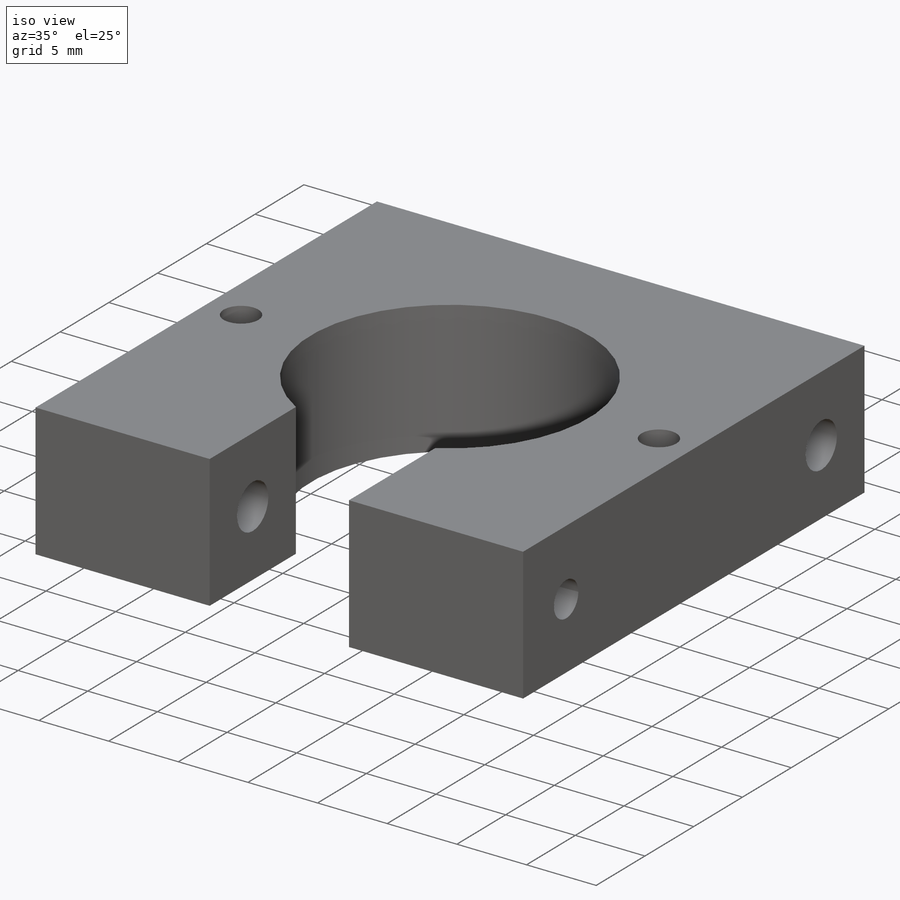
[diagram: iso view]
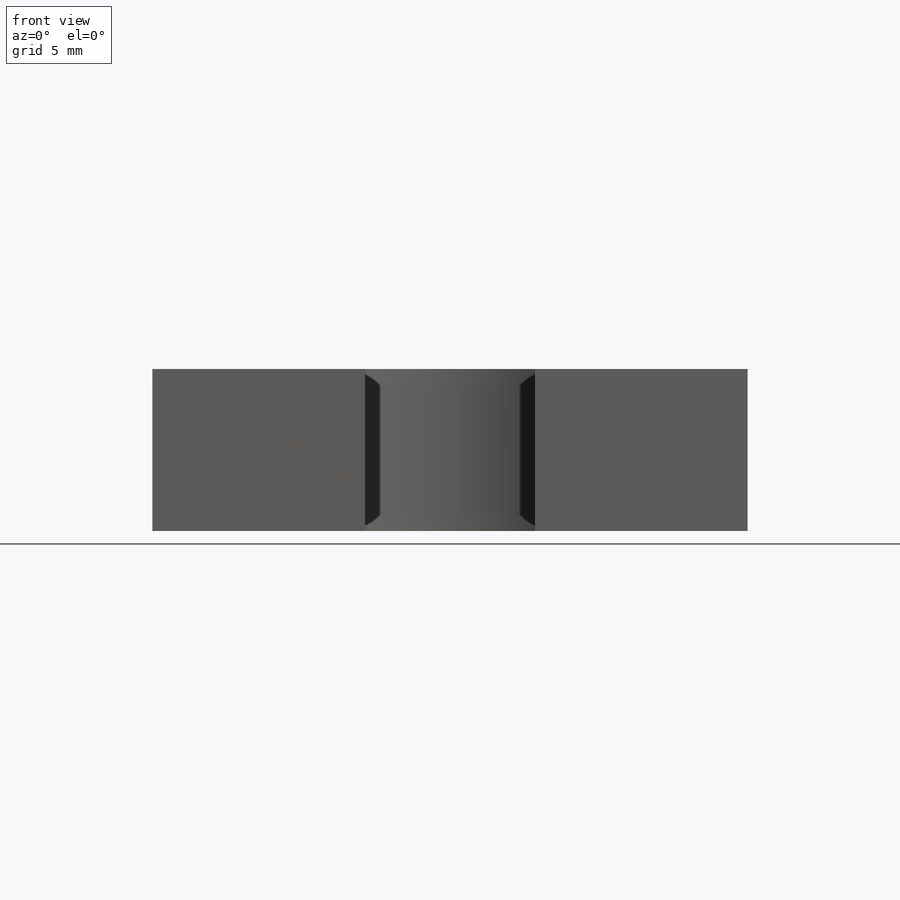
[diagram: front view]
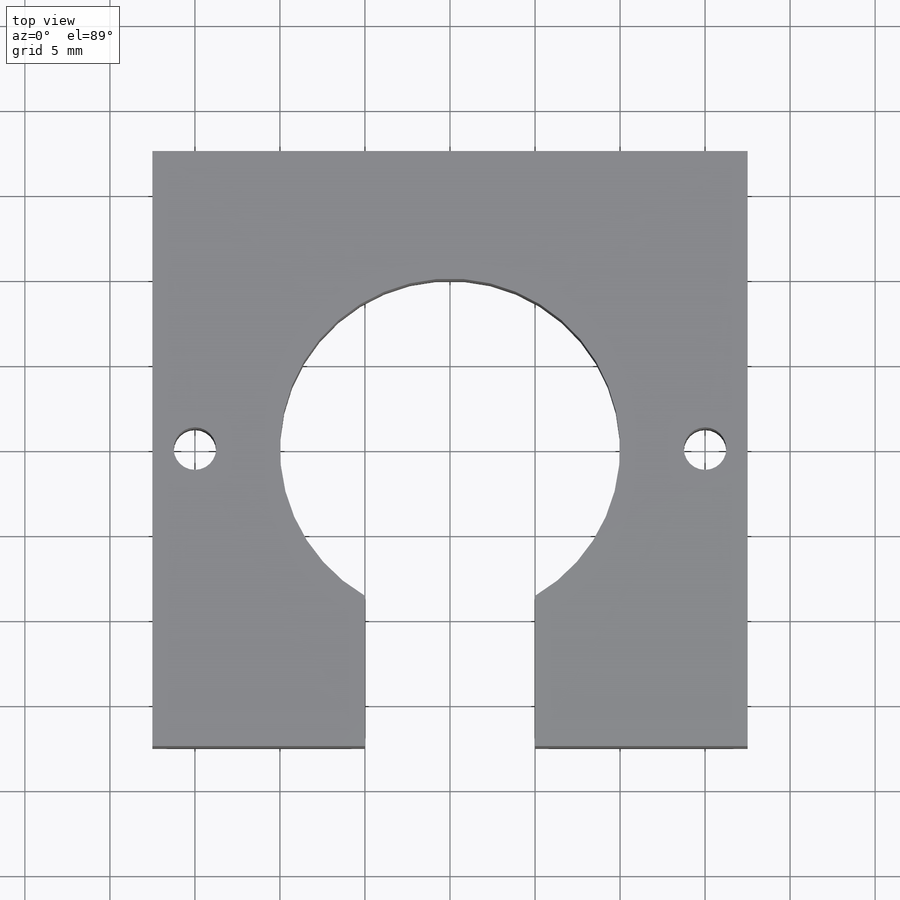
[diagram: top view]
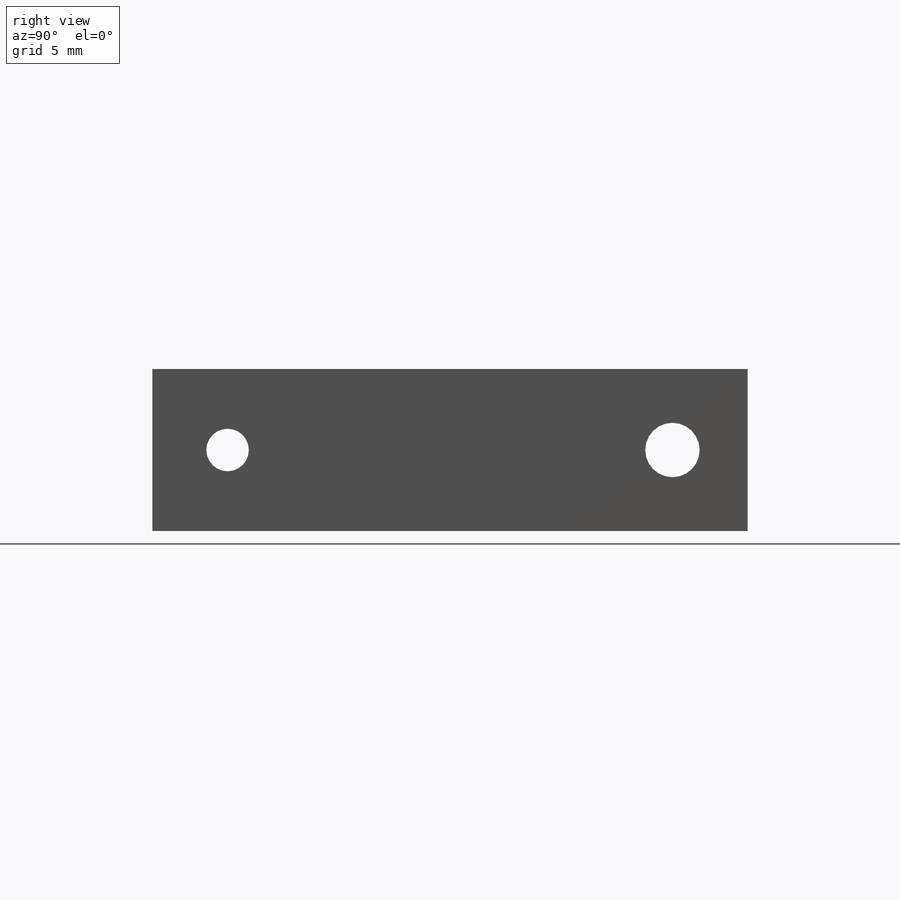
[diagram: right view]
SOLIDWORKS PART (.sldprt)
format: sldprt  version: not decoded by parser v0  size: 374,784 bytes
history: native  units: mm
features: sketch x9, hole x4, material x1, extrude x1 (+13 scaffold rows collapsed)
feature tree (28):
  scaffold x13  (default folders/planes/origin — collapsed)
  material  "6061-T6 (SS)"
  sketch  "Sketch1"  dims[c1.D1=~4.167315mm c1.D7=~9.403582mm c1.D4=~4.770616mm c2.D1=20.0mm c2.D2=20.0mm c2.D4=~8.83563mm c3.D1=5.0mm c3.D2=5.0mm c3.D3=2.0mm c3.D4=2.0mm c3.D5=~14.62835mm c3.D6=~2.224768mm c4.D5=2.5mm c4.D6=2.5mm c4.D7=9.7mm c4.D8=9.525mm c5.D5=2.5mm c5.D8=2.5mm c5.D9=15.5mm c6.D8=2.5mm c6.D9=15.5mm c6.D4=35.0mm c7.D9=9.7mm c7.D4=35.0mm c7.D1=12.5mm c7.D2=25.0mm c7.D3=35.0mm c8.D2=2.5mm c8.D4=35.0mm c9.D2=35.0mm c9.D4=~5.834862mm]
  extrude  "Boss-Extrude1"  Depth=9.525mm
  hole  "Tap Drill for M3x0.5 Tap1"  Diameter=2.5mm Depth=9.525mm
  sketch  "Sketch3"  dims[D1=2.5mm D2=17.5mm]
  sketch  "Sketch2"  dims[hole-wizard template sketch: 60 standard entries collapsed; hole parameters kept: c18.Thru Hole Depth=9.525mm]
  hole  "Tap Drill for M3x0.5 Tap2"  Diameter=2.5mm Depth=9.525mm
  sketch  "Sketch5"  dims[D1=2.5mm D2=17.5mm]
  sketch  "Sketch4"  dims[hole-wizard template sketch: 60 standard entries collapsed; hole parameters kept: c18.Thru Hole Depth=9.525mm]
  hole  "Tap Drill for M3x0.5 Tap3"  Diameter=2.5mm Depth=35mm
  sketch  "Sketch9"  dims[D1=~4.41985mm D2=4.7625mm D3=~4.41985mm D4=4.7625mm]
  sketch  "Sketch8"  dims[hole-wizard template sketch: 60 standard entries collapsed; hole parameters kept: c18.Thru Hole Depth=35.0mm]
  hole  "M3 Clearance Hole1"  Diameter=3.2mm Depth=35mm
  sketch  "Sketch11"  dims[c1.D1=~4.41985mm c1.D2=4.7625mm c1.D3=3.1211mm c1.D4=~5.694091mm c2.D3=~4.41985mm c2.D4=4.7625mm]
  sketch  "Sketch10"  dims[hole-wizard template sketch: 60 standard entries collapsed; hole parameters kept: c18.Thru Hole Depth=35.0mm]
decode coverage: 14 of 14 modeling features carry decoded parameters
note: ~ marks probable driven/reference dimensions
summary: Diameter pulled from absorbed wizard sketch
note: suppression state not decoded; provenance and decode notes live in map.json
